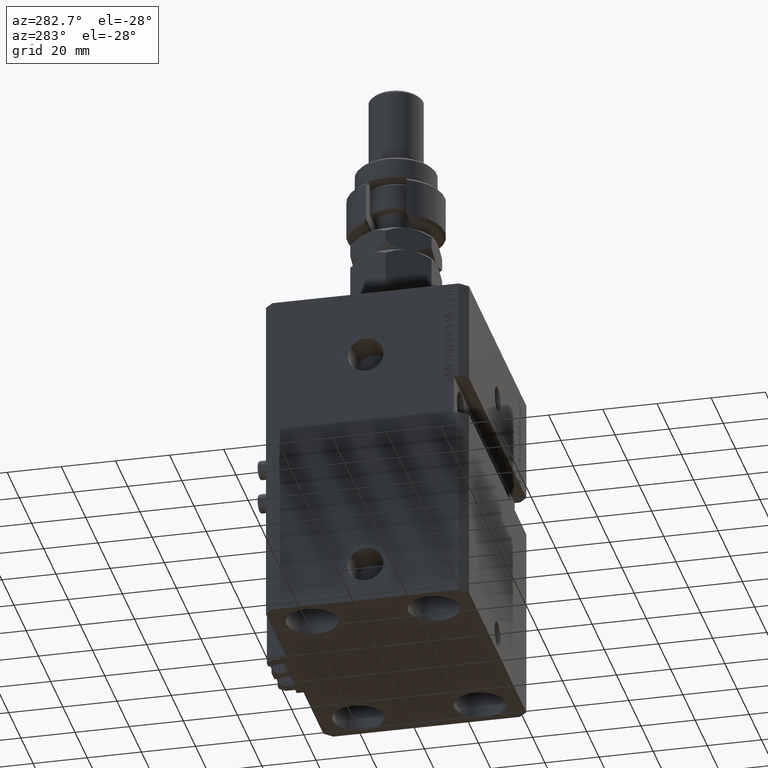
[diagram: clean part render]
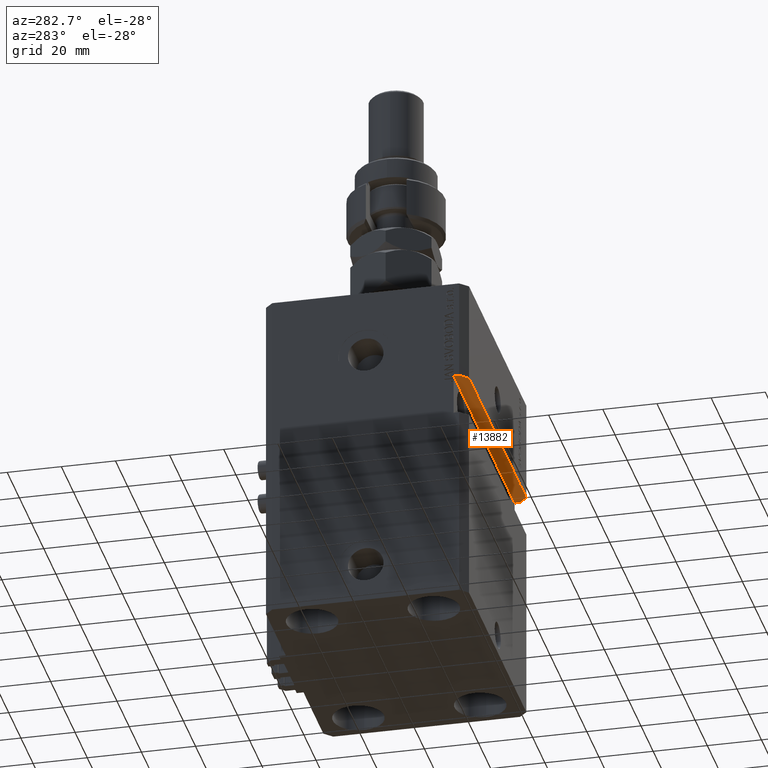
[diagram: same view with one face highlighted and labeled with its STEP entity id]
A machine part, auxiliary view. The second image highlights one B-rep face of the part: STEP entity #13882.
In plain terms, the highlighted planar face has unit normal (-0, -0, 1).
Its self-contained STEP definition (entity closure, byte-faithful):
#388 = CARTESIAN_POINT ( 'NONE',  ( -50.00000000000000711, -34.49999999999999289, -37.50000000000000711 ) ) ;
#3305 = LINE ( 'NONE', #26778, #7564 ) ;
#4365 = LINE ( 'NONE', #8446, #31509 ) ;
#4526 = VERTEX_POINT ( 'NONE', #44660 ) ;
#5242 = DIRECTION ( 'NONE',  ( 1.000000000000000000, 0.000000000000000000, 1.387778780781445676E-16 ) ) ;
#5509 = ORIENTED_EDGE ( 'NONE', *, *, #38798, .T. ) ;
#6178 = VECTOR ( 'NONE', #38672, 1000.000000000000000 ) ;
#6308 = EDGE_CURVE ( 'NONE', #15118, #4526, #45627, .T. ) ;
#6347 = VERTEX_POINT ( 'NONE', #12146 ) ;
#6530 = CARTESIAN_POINT ( 'NONE',  ( 37.58424947145877582, -37.49999999999999289, -37.49999999999999289 ) ) ;
#6761 = CARTESIAN_POINT ( 'NONE',  ( 36.43456162642949892, -36.99999999999999289, -37.49999999999999289 ) ) ;
#7001 = CARTESIAN_POINT ( 'NONE',  ( 46.99999999999999289, -37.50000000000001421, -37.49999999999999289 ) ) ;
#7564 = VECTOR ( 'NONE', #10969, 1000.000000000000000 ) ;
#8446 = CARTESIAN_POINT ( 'NONE',  ( 5.086562056677743841E-15, -36.99999999999999289, -37.50000000000000000 ) ) ;
#9361 = VERTEX_POINT ( 'NONE', #17439 ) ;
#9772 = DIRECTION ( 'NONE',  ( 1.176083712526788232E-16, -1.000000000000000000, -0.000000000000000000 ) ) ;
#10343 = EDGE_CURVE ( 'NONE', #37817, #4526, #21011, .T. ) ;
#10697 = EDGE_CURVE ( 'NONE', #43660, #25754, #4365, .T. ) ;
#10969 = DIRECTION ( 'NONE',  ( -1.000000000000000000, -1.387778780781445676E-16, -1.387778780781445676E-16 ) ) ;
#11993 = LINE ( 'NONE', #19639, #13589 ) ;
#12146 = CARTESIAN_POINT ( 'NONE',  ( 47.00000000000000000, -37.49999999999999289, -37.49999999999999289 ) ) ;
#13276 = VECTOR ( 'NONE', #39941, 1000.000000000000000 ) ;
#13384 = CARTESIAN_POINT ( 'NONE',  ( 49.99999999999999289, -32.49999999999999289, -37.49999999999999289 ) ) ;
#13589 = VECTOR ( 'NONE', #42638, 1000.000000000000000 ) ;
#13882 = ADVANCED_FACE ( 'NONE', ( #45076 ), #17751, .F. ) ;
#14426 = LINE ( 'NONE', #7001, #6178 ) ;
#14957 = ORIENTED_EDGE ( 'NONE', *, *, #10697, .T. ) ;
#15118 = VERTEX_POINT ( 'NONE', #39882 ) ;
#15447 = CARTESIAN_POINT ( 'NONE',  ( 49.99999999999999289, -37.49999999999999289, -37.49999999999999289 ) ) ;
#15699 = LINE ( 'NONE', #31757, #20684 ) ;
#15875 = ORIENTED_EDGE ( 'NONE', *, *, #33192, .T. ) ;
#15991 = VECTOR ( 'NONE', #49899, 1000.000000000000000 ) ;
#16853 = VECTOR ( 'NONE', #30114, 1000.000000000000000 ) ;
#17034 = VERTEX_POINT ( 'NONE', #38040 ) ;
#17439 = CARTESIAN_POINT ( 'NONE',  ( 49.99999999999999289, -34.50000000000001421, -37.49999999999999289 ) ) ;
#17707 = AXIS2_PLACEMENT_3D ( 'NONE', #36406, #44320, #5242 ) ;
#17751 = PLANE ( 'NONE',  #17707 ) ;
#19218 = ORIENTED_EDGE ( 'NONE', *, *, #6308, .T. ) ;
#19224 = VERTEX_POINT ( 'NONE', #13384 ) ;
#19639 = CARTESIAN_POINT ( 'NONE',  ( 49.99999999999999289, -37.49999999999999289, -37.49999999999999289 ) ) ;
#19790 = DIRECTION ( 'NONE',  ( -0.7071067811865491270, 0.7071067811865459074, -9.813077866773615438E-17 ) ) ;
#20076 = EDGE_LOOP ( 'NONE', ( #37128, #5509, #15875, #14957, #24617, #22675, #19218, #43958, #25022, #28433 ) ) ;
#20268 = LINE ( 'NONE', #15447, #13276 ) ;
#20684 = VECTOR ( 'NONE', #27413, 1000.000000000000000 ) ;
#21011 = LINE ( 'NONE', #32984, #29872 ) ;
#22675 = ORIENTED_EDGE ( 'NONE', *, *, #28076, .T. ) ;
#24617 = ORIENTED_EDGE ( 'NONE', *, *, #37914, .T. ) ;
#25022 = ORIENTED_EDGE ( 'NONE', *, *, #30729, .F. ) ;
#25754 = VERTEX_POINT ( 'NONE', #46992 ) ;
#26778 = CARTESIAN_POINT ( 'NONE',  ( 49.99999999999999289, -32.49999999999999289, -37.49999999999999289 ) ) ;
#27413 = DIRECTION ( 'NONE',  ( -2.352167425053553291E-16, 1.000000000000000000, -1.632144020667310399E-32 ) ) ;
#28076 = EDGE_CURVE ( 'NONE', #17034, #15118, #20268, .T. ) ;
#28433 = ORIENTED_EDGE ( 'NONE', *, *, #42451, .T. ) ;
#28658 = VERTEX_POINT ( 'NONE', #6530 ) ;
#29872 = VECTOR ( 'NONE', #9772, 1000.000000000000000 ) ;
#30114 = DIRECTION ( 'NONE',  ( 1.176083712526788232E-16, -1.000000000000000000, -0.000000000000000000 ) ) ;
#30729 = EDGE_CURVE ( 'NONE', #19224, #37817, #3305, .T. ) ;
#31068 = CARTESIAN_POINT ( 'NONE',  ( 37.58424947145879713, -36.99999999999999289, -37.49999999999999289 ) ) ;
#31509 = VECTOR ( 'NONE', #35512, 1000.000000000000000 ) ;
#31757 = CARTESIAN_POINT ( 'NONE',  ( 37.58424947145878292, -36.99999999999999289, -37.49999999999999289 ) ) ;
#32984 = CARTESIAN_POINT ( 'NONE',  ( -50.00000000000001421, -32.50000000000000711, -37.50000000000000711 ) ) ;
#33192 = EDGE_CURVE ( 'NONE', #28658, #43660, #15699, .T. ) ;
#33823 = CARTESIAN_POINT ( 'NONE',  ( -50.00000000000001421, -32.50000000000000711, -37.50000000000000711 ) ) ;
#35512 = DIRECTION ( 'NONE',  ( -1.000000000000000000, 0.000000000000000000, -1.387778780781445676E-16 ) ) ;
#36406 = CARTESIAN_POINT ( 'NONE',  ( 49.99999999999999289, -32.49999999999999289, -37.49999999999999289 ) ) ;
#36934 = EDGE_CURVE ( 'NONE', #9361, #6347, #14426, .T. ) ;
#37128 = ORIENTED_EDGE ( 'NONE', *, *, #36934, .T. ) ;
#37817 = VERTEX_POINT ( 'NONE', #33823 ) ;
#37914 = EDGE_CURVE ( 'NONE', #25754, #17034, #41759, .T. ) ;
#38040 = CARTESIAN_POINT ( 'NONE',  ( 36.43456162642949181, -37.49999999999999289, -37.49999999999999289 ) ) ;
#38672 = DIRECTION ( 'NONE',  ( -0.7071067811865483499, -0.7071067811865466846, -9.813077866773606810E-17 ) ) ;
#38798 = EDGE_CURVE ( 'NONE', #6347, #28658, #11993, .T. ) ;
#39882 = CARTESIAN_POINT ( 'NONE',  ( -46.99999999999997868, -37.50000000000000711, -37.50000000000000711 ) ) ;
#39941 = DIRECTION ( 'NONE',  ( -1.000000000000000000, -1.387778780781445676E-16, -1.387778780781445676E-16 ) ) ;
#41634 = LINE ( 'NONE', #49532, #16853 ) ;
#41759 = LINE ( 'NONE', #6761, #15991 ) ;
#42451 = EDGE_CURVE ( 'NONE', #19224, #9361, #41634, .T. ) ;
#42638 = DIRECTION ( 'NONE',  ( -1.000000000000000000, -1.387778780781445676E-16, -1.387778780781445676E-16 ) ) ;
#42791 = VECTOR ( 'NONE', #19790, 1000.000000000000114 ) ;
#43660 = VERTEX_POINT ( 'NONE', #31068 ) ;
#43958 = ORIENTED_EDGE ( 'NONE', *, *, #10343, .F. ) ;
#44320 = DIRECTION ( 'NONE',  ( -1.387778780781445676E-16, -1.632144020667342421E-32, 1.000000000000000000 ) ) ;
#44660 = CARTESIAN_POINT ( 'NONE',  ( -50.00000000000001421, -34.49999999999998579, -37.50000000000000711 ) ) ;
#45076 = FACE_OUTER_BOUND ( 'NONE', #20076, .T. ) ;
#45627 = LINE ( 'NONE', #388, #42791 ) ;
#46992 = CARTESIAN_POINT ( 'NONE',  ( 36.43456162642952734, -36.99999999999999289, -37.50000000000000000 ) ) ;
#49532 = CARTESIAN_POINT ( 'NONE',  ( 49.99999999999999289, -32.49999999999999289, -37.49999999999999289 ) ) ;
#49899 = DIRECTION ( 'NONE',  ( 2.352167425053553291E-16, -1.000000000000000000, 1.632144020667310673E-32 ) ) ;